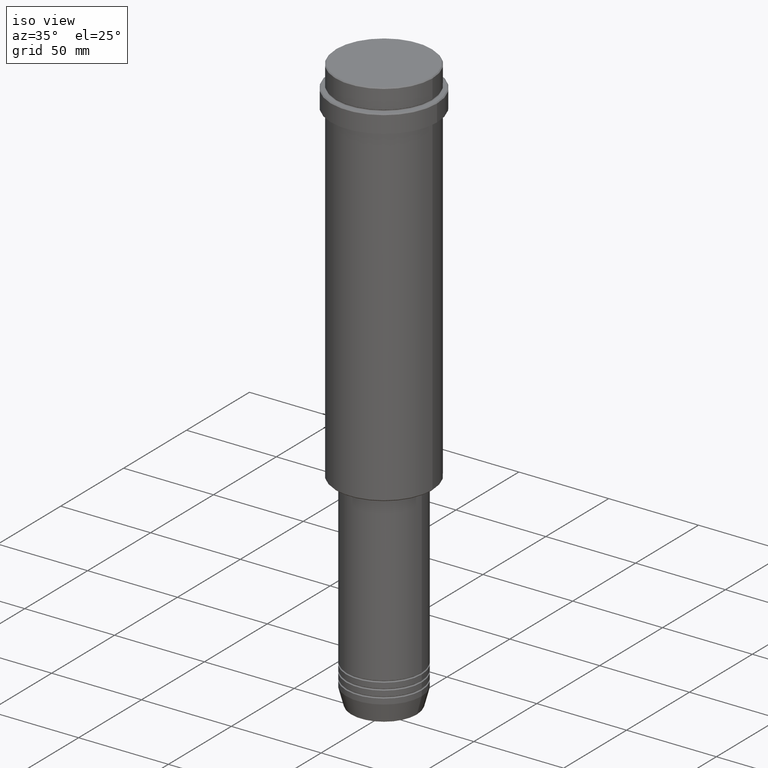
[diagram: clean part render]
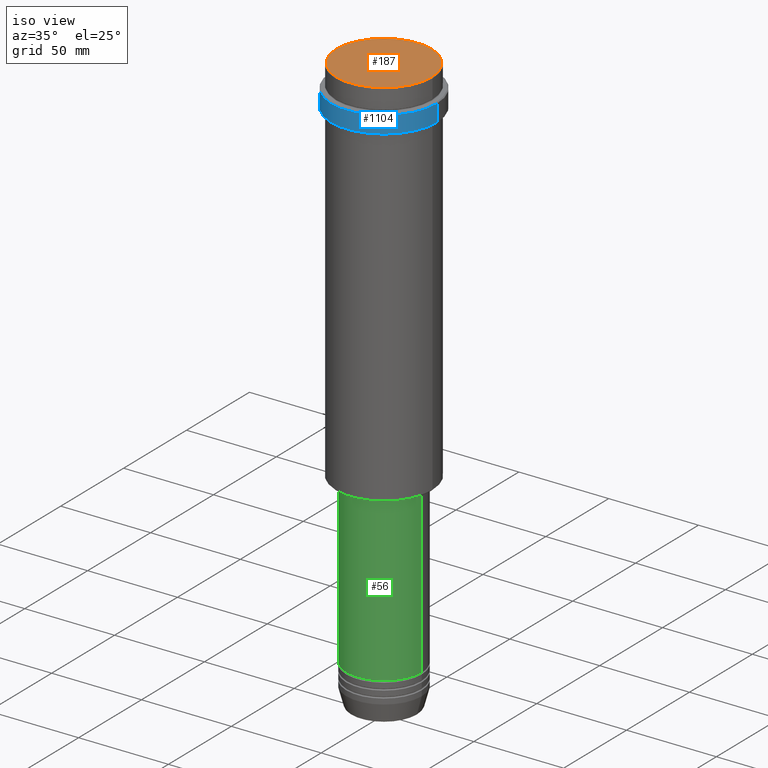
[diagram: same view with three faces highlighted in distinct colors, each labeled with its STEP entity id]
A machine part, iso view with three faces highlighted in distinct colors.
Their STEP definitions:

[orange] entity #187 — the highlighted planar face has unit normal (0, -0, 1).
#1 = CARTESIAN_POINT ( 'NONE',  ( 0.000000000000000000, 0.000000000000000000, 0.000000000000000000 ) ) ;
#8 = FACE_OUTER_BOUND ( 'NONE', #891, .T. ) ;
#17 = CIRCLE ( 'NONE', #822, 26.49999999999996803 ) ;
#33 = DIRECTION ( 'NONE',  ( 1.000000000000000000, 0.000000000000000000, 0.000000000000000000 ) ) ;
#136 = PLANE ( 'NONE',  #1278 ) ;
#142 = DIRECTION ( 'NONE',  ( -0.000000000000000000, -0.000000000000000000, 1.000000000000000000 ) ) ;
#187 = ADVANCED_FACE ( 'NONE', ( #8 ), #136, .T. ) ;
#245 = CARTESIAN_POINT ( 'NONE',  ( 0.000000000000000000, 0.000000000000000000, 0.000000000000000000 ) ) ;
#249 = CIRCLE ( 'NONE', #315, 26.49999999999996803 ) ;
#315 = AXIS2_PLACEMENT_3D ( 'NONE', #1, #438, #341 ) ;
#339 = EDGE_CURVE ( 'NONE', #730, #1388, #249, .T. ) ;
#341 = DIRECTION ( 'NONE',  ( 1.000000000000000000, 0.000000000000000000, 0.000000000000000000 ) ) ;
#364 = CARTESIAN_POINT ( 'NONE',  ( -26.49999999999996803, 0.000000000000000000, 0.000000000000000000 ) ) ;
#438 = DIRECTION ( 'NONE',  ( -0.000000000000000000, -0.000000000000000000, 1.000000000000000000 ) ) ;
#445 = DIRECTION ( 'NONE',  ( 0.000000000000000000, -0.000000000000000000, 1.000000000000000000 ) ) ;
#465 = CARTESIAN_POINT ( 'NONE',  ( 0.000000000000000000, 0.000000000000000000, 0.000000000000000000 ) ) ;
#730 = VERTEX_POINT ( 'NONE', #364 ) ;
#774 = DIRECTION ( 'NONE',  ( 1.000000000000000000, 0.000000000000000000, 0.000000000000000000 ) ) ;
#822 = AXIS2_PLACEMENT_3D ( 'NONE', #245, #142, #33 ) ;
#891 = EDGE_LOOP ( 'NONE', ( #1314, #1392 ) ) ;
#1091 = EDGE_CURVE ( 'NONE', #1388, #730, #17, .T. ) ;
#1278 = AXIS2_PLACEMENT_3D ( 'NONE', #465, #445, #774 ) ;
#1314 = ORIENTED_EDGE ( 'NONE', *, *, #339, .T. ) ;
#1388 = VERTEX_POINT ( 'NONE', #1393 ) ;
#1392 = ORIENTED_EDGE ( 'NONE', *, *, #1091, .T. ) ;
#1393 = CARTESIAN_POINT ( 'NONE',  ( 26.49999999999996803, 3.275930187719167974E-15, 0.000000000000000000 ) ) ;

[blue] entity #1104 — the highlighted cylindrical surface (partial cylindrical patch) has radius 29.5 mm, axis along (-0, -0, 1).
#50 = VERTEX_POINT ( 'NONE', #310 ) ;
#58 = EDGE_LOOP ( 'NONE', ( #1062, #1376, #579, #1127 ) ) ;
#60 = CARTESIAN_POINT ( 'NONE',  ( 0.000000000000000000, 0.000000000000000000, -12.50000000000011546 ) ) ;
#73 = CIRCLE ( 'NONE', #1052, 29.49999999999999645 ) ;
#93 = VECTOR ( 'NONE', #894, 1000.000000000000000 ) ;
#198 = VERTEX_POINT ( 'NONE', #897 ) ;
#222 = EDGE_CURVE ( 'NONE', #1199, #198, #73, .T. ) ;
#302 = DIRECTION ( 'NONE',  ( -0.000000000000000000, -0.000000000000000000, 1.000000000000000000 ) ) ;
#310 = CARTESIAN_POINT ( 'NONE',  ( 29.50000000000000000, 0.000000000000000000, -12.50000000000011546 ) ) ;
#329 = VERTEX_POINT ( 'NONE', #511 ) ;
#350 = CARTESIAN_POINT ( 'NONE',  ( 0.000000000000000000, 0.000000000000000000, -22.00000000000000711 ) ) ;
#360 = EDGE_CURVE ( 'NONE', #1199, #329, #448, .T. ) ;
#435 = CARTESIAN_POINT ( 'NONE',  ( 0.000000000000000000, 0.000000000000000000, 0.000000000000000000 ) ) ;
#448 = LINE ( 'NONE', #672, #1232 ) ;
#493 = DIRECTION ( 'NONE',  ( 0.000000000000000000, 0.000000000000000000, -1.000000000000000000 ) ) ;
#511 = CARTESIAN_POINT ( 'NONE',  ( -29.50000000000000000, 3.612708057484691604E-15, -12.50000000000011546 ) ) ;
#552 = EDGE_CURVE ( 'NONE', #198, #50, #1214, .T. ) ;
#570 = DIRECTION ( 'NONE',  ( -0.000000000000000000, -0.000000000000000000, 1.000000000000000000 ) ) ;
#579 = ORIENTED_EDGE ( 'NONE', *, *, #552, .T. ) ;
#672 = CARTESIAN_POINT ( 'NONE',  ( -29.50000000000000000, 3.612708057484691604E-15, 0.000000000000000000 ) ) ;
#791 = DIRECTION ( 'NONE',  ( -0.000000000000000000, -0.000000000000000000, 1.000000000000000000 ) ) ;
#837 = FACE_OUTER_BOUND ( 'NONE', #58, .T. ) ;
#872 = DIRECTION ( 'NONE',  ( 1.000000000000000000, 0.000000000000000000, 0.000000000000000000 ) ) ;
#894 = DIRECTION ( 'NONE',  ( -0.000000000000000000, -0.000000000000000000, 1.000000000000000000 ) ) ;
#897 = CARTESIAN_POINT ( 'NONE',  ( 29.49999999999999645, 0.000000000000000000, -22.00000000000000711 ) ) ;
#1002 = CARTESIAN_POINT ( 'NONE',  ( 29.50000000000000000, 0.000000000000000000, 0.000000000000000000 ) ) ;
#1052 = AXIS2_PLACEMENT_3D ( 'NONE', #350, #791, #872 ) ;
#1062 = ORIENTED_EDGE ( 'NONE', *, *, #360, .F. ) ;
#1104 = ADVANCED_FACE ( 'NONE', ( #837 ), #1255, .T. ) ;
#1111 = AXIS2_PLACEMENT_3D ( 'NONE', #435, #302, #1404 ) ;
#1127 = ORIENTED_EDGE ( 'NONE', *, *, #1345, .T. ) ;
#1185 = CIRCLE ( 'NONE', #1370, 29.50000000000000000 ) ;
#1199 = VERTEX_POINT ( 'NONE', #1238 ) ;
#1214 = LINE ( 'NONE', #1002, #93 ) ;
#1218 = DIRECTION ( 'NONE',  ( 1.000000000000000000, 0.000000000000000000, 0.000000000000000000 ) ) ;
#1232 = VECTOR ( 'NONE', #570, 1000.000000000000000 ) ;
#1238 = CARTESIAN_POINT ( 'NONE',  ( -29.49999999999999645, 3.612708057484690815E-15, -22.00000000000000711 ) ) ;
#1255 = CYLINDRICAL_SURFACE ( 'NONE', #1111, 29.50000000000000000 ) ;
#1345 = EDGE_CURVE ( 'NONE', #50, #329, #1185, .T. ) ;
#1370 = AXIS2_PLACEMENT_3D ( 'NONE', #60, #493, #1218 ) ;
#1376 = ORIENTED_EDGE ( 'NONE', *, *, #222, .T. ) ;
#1404 = DIRECTION ( 'NONE',  ( 1.000000000000000000, 0.000000000000000000, 0.000000000000000000 ) ) ;

[green] entity #56 — the highlighted cylindrical surface (partial cylindrical patch) has radius 21 mm, axis along (-0, -0, 1).
#2 = DIRECTION ( 'NONE',  ( -0.000000000000000000, -0.000000000000000000, 1.000000000000000000 ) ) ;
#43 = CARTESIAN_POINT ( 'NONE',  ( 0.000000000000000000, 0.000000000000000000, -208.9999999999999432 ) ) ;
#56 = ADVANCED_FACE ( 'NONE', ( #189 ), #638, .T. ) ;
#69 = ORIENTED_EDGE ( 'NONE', *, *, #205, .T. ) ;
#107 = DIRECTION ( 'NONE',  ( -0.000000000000000000, -0.000000000000000000, 1.000000000000000000 ) ) ;
#110 = DIRECTION ( 'NONE',  ( 1.000000000000000000, 0.000000000000000000, 0.000000000000000000 ) ) ;
#189 = FACE_OUTER_BOUND ( 'NONE', #338, .T. ) ;
#205 = EDGE_CURVE ( 'NONE', #355, #1099, #596, .T. ) ;
#240 = VECTOR ( 'NONE', #466, 1000.000000000000000 ) ;
#246 = LINE ( 'NONE', #575, #240 ) ;
#338 = EDGE_LOOP ( 'NONE', ( #384, #69, #578, #660 ) ) ;
#355 = VERTEX_POINT ( 'NONE', #659 ) ;
#365 = DIRECTION ( 'NONE',  ( 1.000000000000000000, 0.000000000000000000, 0.000000000000000000 ) ) ;
#383 = EDGE_CURVE ( 'NONE', #434, #1383, #1375, .T. ) ;
#384 = ORIENTED_EDGE ( 'NONE', *, *, #603, .F. ) ;
#389 = AXIS2_PLACEMENT_3D ( 'NONE', #43, #478, #365 ) ;
#434 = VERTEX_POINT ( 'NONE', #1117 ) ;
#466 = DIRECTION ( 'NONE',  ( -0.000000000000000000, -0.000000000000000000, 1.000000000000000000 ) ) ;
#478 = DIRECTION ( 'NONE',  ( -0.000000000000000000, -0.000000000000000000, 1.000000000000000000 ) ) ;
#537 = CARTESIAN_POINT ( 'NONE',  ( 0.000000000000000000, 0.000000000000000000, 0.000000000000000000 ) ) ;
#575 = CARTESIAN_POINT ( 'NONE',  ( 21.00000000000000000, 0.000000000000000000, 0.000000000000000000 ) ) ;
#578 = ORIENTED_EDGE ( 'NONE', *, *, #878, .T. ) ;
#596 = CIRCLE ( 'NONE', #1207, 21.00000000000000000 ) ;
#603 = EDGE_CURVE ( 'NONE', #355, #434, #743, .T. ) ;
#638 = CYLINDRICAL_SURFACE ( 'NONE', #715, 21.00000000000000000 ) ;
#643 = CARTESIAN_POINT ( 'NONE',  ( -21.00000000000000000, 2.571758278209441661E-15, 0.000000000000000000 ) ) ;
#659 = CARTESIAN_POINT ( 'NONE',  ( -21.00000000000000000, 2.571758278209441661E-15, -300.9999999999998863 ) ) ;
#660 = ORIENTED_EDGE ( 'NONE', *, *, #383, .F. ) ;
#715 = AXIS2_PLACEMENT_3D ( 'NONE', #537, #1286, #747 ) ;
#743 = LINE ( 'NONE', #643, #750 ) ;
#747 = DIRECTION ( 'NONE',  ( 1.000000000000000000, 0.000000000000000000, 0.000000000000000000 ) ) ;
#750 = VECTOR ( 'NONE', #107, 1000.000000000000000 ) ;
#878 = EDGE_CURVE ( 'NONE', #1099, #1383, #246, .T. ) ;
#952 = CARTESIAN_POINT ( 'NONE',  ( 21.00000000000000000, 0.000000000000000000, -208.9999999999999432 ) ) ;
#1099 = VERTEX_POINT ( 'NONE', #1262 ) ;
#1117 = CARTESIAN_POINT ( 'NONE',  ( -21.00000000000000000, 2.571758278209441661E-15, -208.9999999999999432 ) ) ;
#1207 = AXIS2_PLACEMENT_3D ( 'NONE', #1332, #2, #110 ) ;
#1262 = CARTESIAN_POINT ( 'NONE',  ( 21.00000000000000000, 0.000000000000000000, -300.9999999999998863 ) ) ;
#1286 = DIRECTION ( 'NONE',  ( -0.000000000000000000, -0.000000000000000000, 1.000000000000000000 ) ) ;
#1332 = CARTESIAN_POINT ( 'NONE',  ( 0.000000000000000000, 0.000000000000000000, -300.9999999999998863 ) ) ;
#1375 = CIRCLE ( 'NONE', #389, 21.00000000000000000 ) ;
#1383 = VERTEX_POINT ( 'NONE', #952 ) ;